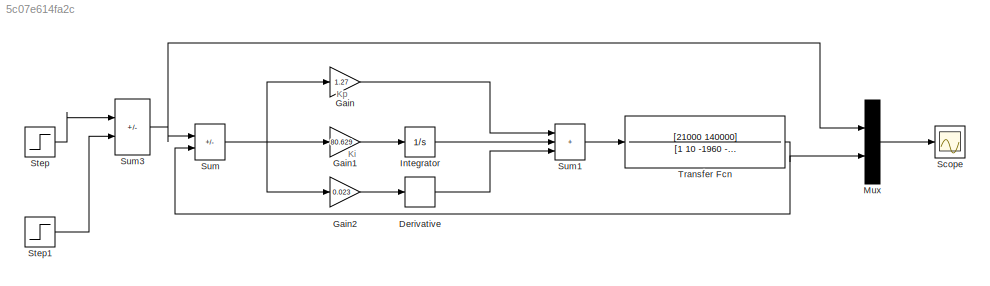
MODEL slx_5c07e614fa2c
KIND model
CONFIG AbsTol = auto
CONFIG EnableMultiTasking = off
CONFIG FixedStep = auto
CONFIG MaxStep = auto
CONFIG MinStep = auto
CONFIG RelTol = 1e-3
CONFIG SampleTimeConstraint = Unconstrained
CONFIG SolverName = VariableStepAuto
CONFIG StartTime = 0.0
CONFIG StopTime = 1
BLOCK [Derivative] Derivative
BLOCK [Gain] Gain
  Gain = 1.27
BLOCK [Gain] Gain1
  Gain = 80.629
BLOCK [Gain] Gain2
  Gain = 0.023
BLOCK [Integrator] Integrator
  Ports = [1, 1]
BLOCK [Mux] Mux
  DisplayOption = bar
  Inputs = 2
  Ports = [2, 1]
BLOCK [Scope] Scope
  Floating = off
  NumInputPorts = 1
  Ports = [1]
  ScopeSpecificationString = Simulink.scopes.TimeScopeBlockCfg('CurrentConfiguration', extmgr.ConfigurationSet(extmgr.Configuration('Core','General UI',true,'FigureColor',[1 1 1]),extmgr.Configuration('Core','Source UI',true),extmgr.Configuration('Sources','WiredSimulink',true),extmgr.Configuration('Visuals','Time Domain',true,'SerializedDisplays',{struct('MinYLimReal','-0.08895','MaxYLimReal','0.80053','YLabelReal','','MinYL...<+1789ch>
BLOCK [Step] Step
  After = 0.5
  SampleTime = 0
  Time = 0
BLOCK [Step] Step1
  After = 0.3
  SampleTime = 0
  Time = 0.5
BLOCK [Sum] Sum
  IconShape = rectangular
  Inputs = |+-
  Ports = [2, 1]
BLOCK [Sum] Sum1
  IconShape = rectangular
  Inputs = +++
  Ports = [3, 1]
BLOCK [Sum] Sum3
  IconShape = rectangular
  Inputs = +-
  Ports = [2, 1]
BLOCK [TransferFcn] Transfer Fcn
  Denominator = [1 10 -1960 -19600]
  Numerator = [21000 140000]
ANNOTATION (root): Ki
ANNOTATION (root): Kp
LINE Derivative:1 -> Sum1:3
LINE Gain1:1 -> Integrator:1
LINE Gain2:1 -> Derivative:1
LINE Gain:1 -> Sum1:1
LINE Integrator:1 -> Sum1:2
LINE Mux:1 -> Scope:1
LINE Step1:1 -> Sum3:2
LINE Step:1 -> Sum3:1
LINE Sum1:1 -> Transfer Fcn:1
NET Sum3:1 -> Mux:1, Sum:1
NET Sum:1 -> Gain1:1, Gain2:1, Gain:1
NET Transfer Fcn:1 -> Mux:2, Sum:2
note: NET lines group one-source signal fan-out (src -> all destinations, sorted); 1:1 wires keep LINE
